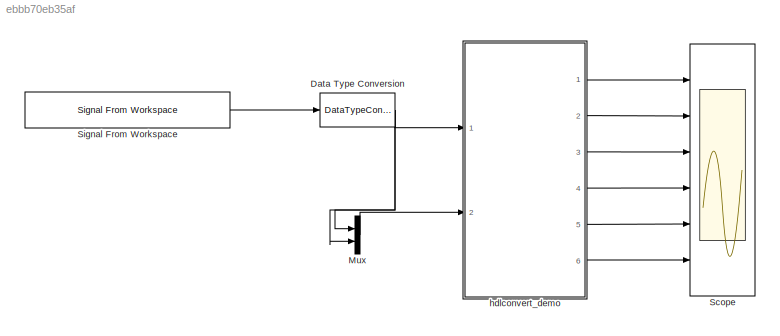
MODEL slx_ebbb70eb35af
KIND model
CONFIG AbsTol = auto
CONFIG EnableMultiTasking = off
CONFIG FixedStep = auto
CONFIG MaxStep = auto
CONFIG MinStep = auto
CONFIG RelTol = 1e-3
CONFIG SampleTimeConstraint = Unconstrained
CONFIG Solver = VariableStepAuto
CONFIG SolverName = VariableStepAuto
CONFIG StartTime = 0.0
CONFIG StopTime = 10.0
BLOCK [DataTypeConversion] Data Type Conversion
  ConvertRealWorld = Stored Integer (SI)
  OutDataTypeStr = fixdt(1, 8, 4)
  RndMeth = Floor
  SaturateOnIntegerOverflow = off
BLOCK [Mux] Mux
  DisplayOption = bar
  Inputs = 2
  Ports = [2, 1]
BLOCK [Scope] Scope
  NumInputPorts = 6
  Ports = [6]
  ScopeSpecificationString = Simulink.scopes.TimeScopeBlockCfg('CurrentConfiguration', extmgr.ConfigurationSet(extmgr.Configuration('Core','General UI',true),extmgr.Configuration('Core','Source UI',true),extmgr.Configuration('Sources','WiredSimulink',true),extmgr.Configuration('Visuals','Time Domain',true,'SerializedDisplays',{struct('MinYLimReal','-9.96875','MaxYLimReal','9.71875','YLabelReal','','MinYLimMag','0.00000','MaxY...<+4808ch>
BLOCK [Reference] Signal From Workspace  REF=dspsrcs4/Signal From
Workspace
  Ports = [0, 1]
  SourceBlock = dspsrcs4/Signal From\nWorkspace
  SourceProductBaseCode = DS
  SourceProductName = DSP System Toolbox
  SourceType = Signal From Workspace
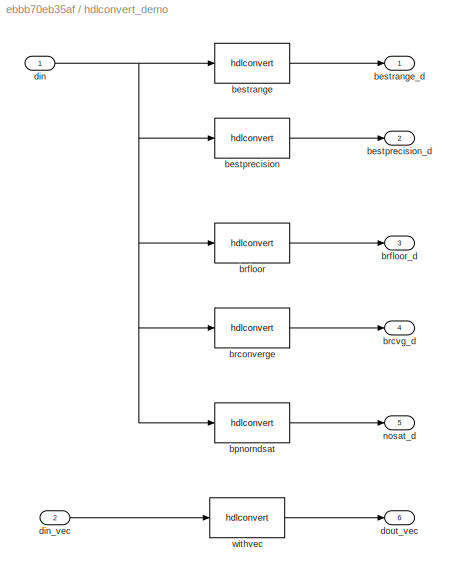
BLOCK [SubSystem] hdlconvert_demo
  Ports = [2, 6]
  RequestExecContextInheritance = off
  Variant = off
BLOCK [Reference] hdlconvert_demo/bestprecision  REF=lib_dsphdltypes_v1/hdlconvert  (lib defined in slx_567fb05dc9b5)
  Ports = [1, 1]
  SourceBlock = lib_dsphdltypes_v1/hdlconvert
  SourceProductName = DSPHDL Library
  SourceType = HDL Type Conversion
BLOCK [Outport] hdlconvert_demo/bestprecision_d
  IconDisplay = Port number
  Port = 2
BLOCK [Reference] hdlconvert_demo/bestrange  REF=lib_dsphdltypes_v1/hdlconvert  (lib defined in slx_567fb05dc9b5)
  Ports = [1, 1]
  SourceBlock = lib_dsphdltypes_v1/hdlconvert
  SourceProductName = DSPHDL Library
  SourceType = HDL Type Conversion
BLOCK [Outport] hdlconvert_demo/bestrange_d
  IconDisplay = Port number
BLOCK [Reference] hdlconvert_demo/bpnorndsat  REF=lib_dsphdltypes_v1/hdlconvert  (lib defined in slx_567fb05dc9b5)
  Ports = [1, 1]
  SourceBlock = lib_dsphdltypes_v1/hdlconvert
  SourceProductName = DSPHDL Library
  SourceType = HDL Type Conversion
BLOCK [Reference] hdlconvert_demo/brconverge  REF=lib_dsphdltypes_v1/hdlconvert  (lib defined in slx_567fb05dc9b5)
  Ports = [1, 1]
  SourceBlock = lib_dsphdltypes_v1/hdlconvert
  SourceProductName = DSPHDL Library
  SourceType = HDL Type Conversion
BLOCK [Outport] hdlconvert_demo/brcvg_d
  IconDisplay = Port number
  Port = 4
BLOCK [Reference] hdlconvert_demo/brfloor  REF=lib_dsphdltypes_v1/hdlconvert  (lib defined in slx_567fb05dc9b5)
  Ports = [1, 1]
  SourceBlock = lib_dsphdltypes_v1/hdlconvert
  SourceProductName = DSPHDL Library
  SourceType = HDL Type Conversion
BLOCK [Outport] hdlconvert_demo/brfloor_d
  IconDisplay = Port number
  Port = 3
BLOCK [Inport] hdlconvert_demo/din
  IconDisplay = Port number
BLOCK [Inport] hdlconvert_demo/din_vec
  IconDisplay = Port number
  Port = 2
BLOCK [Outport] hdlconvert_demo/dout_vec
  IconDisplay = Port number
  Port = 6
BLOCK [Outport] hdlconvert_demo/nosat_d
  IconDisplay = Port number
  Port = 5
BLOCK [Reference] hdlconvert_demo/withvec  REF=lib_dsphdltypes_v1/hdlconvert  (lib defined in slx_567fb05dc9b5)
  Ports = [1, 1]
  SourceBlock = lib_dsphdltypes_v1/hdlconvert
  SourceProductName = DSPHDL Library
  SourceType = HDL Type Conversion
NET Data Type Conversion:1 -> Mux:1, Mux:2, hdlconvert_demo:1
LINE Mux:1 -> hdlconvert_demo:2
LINE Signal From Workspace:1 -> Data Type Conversion:1
LINE hdlconvert_demo/bestprecision:1 -> hdlconvert_demo/bestprecision_d:1
LINE hdlconvert_demo/bestrange:1 -> hdlconvert_demo/bestrange_d:1
LINE hdlconvert_demo/bpnorndsat:1 -> hdlconvert_demo/nosat_d:1
LINE hdlconvert_demo/brconverge:1 -> hdlconvert_demo/brcvg_d:1
LINE hdlconvert_demo/brfloor:1 -> hdlconvert_demo/brfloor_d:1
NET hdlconvert_demo/din:1 -> hdlconvert_demo/bestprecision:1, hdlconvert_demo/bestrange:1, hdlconvert_demo/bpnorndsat:1, hdlconvert_demo/brconverge:1, hdlconvert_demo/brfloor:1
LINE hdlconvert_demo/din_vec:1 -> hdlconvert_demo/withvec:1
LINE hdlconvert_demo/withvec:1 -> hdlconvert_demo/dout_vec:1
LINE hdlconvert_demo:1 -> Scope:1
LINE hdlconvert_demo:2 -> Scope:2
LINE hdlconvert_demo:3 -> Scope:3
LINE hdlconvert_demo:4 -> Scope:4
LINE hdlconvert_demo:5 -> Scope:5
LINE hdlconvert_demo:6 -> Scope:6
note: NET lines group one-source signal fan-out (src -> all destinations, sorted); 1:1 wires keep LINE
